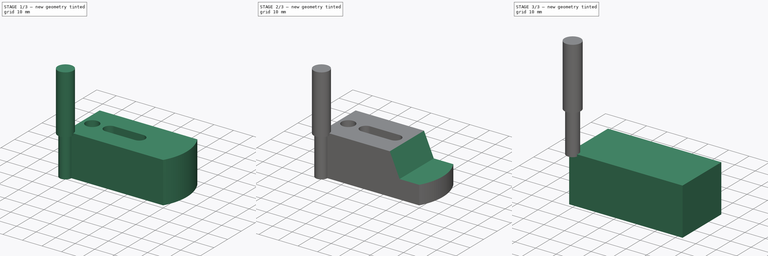
[diagram: build sequence overview — one tinted view per stage of 3, left to right]
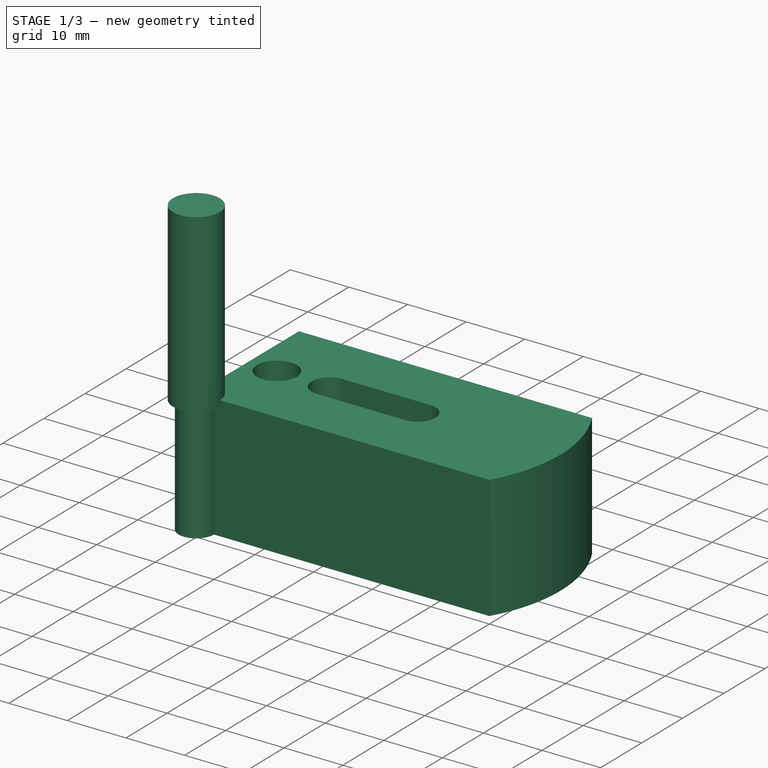
[diagram: stage 1 of 3 — iso view after this stage's code; geometry added in this stage tinted green]
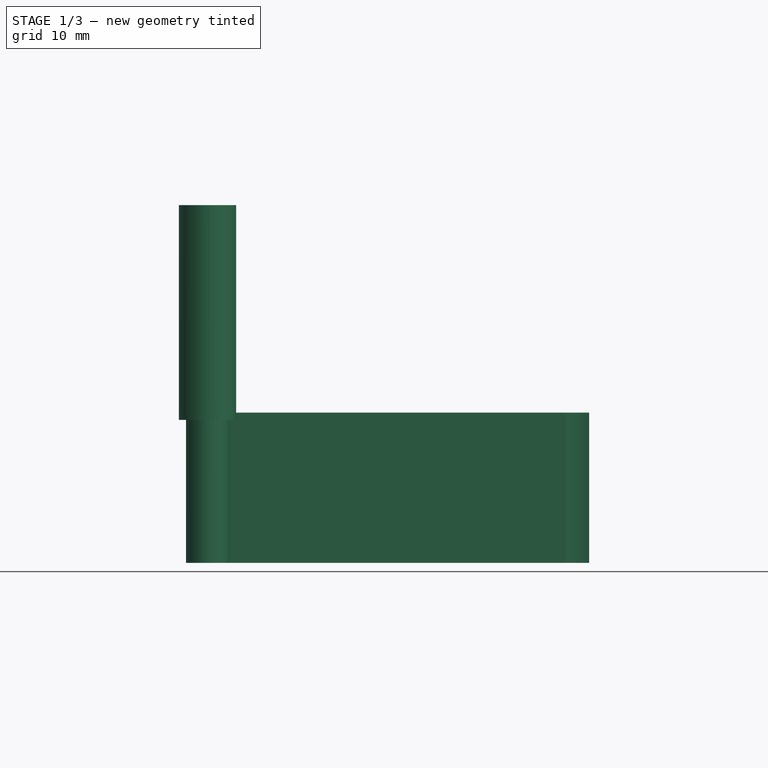
[diagram: stage 1 of 3 — front view after this stage's code; geometry added in this stage tinted green]
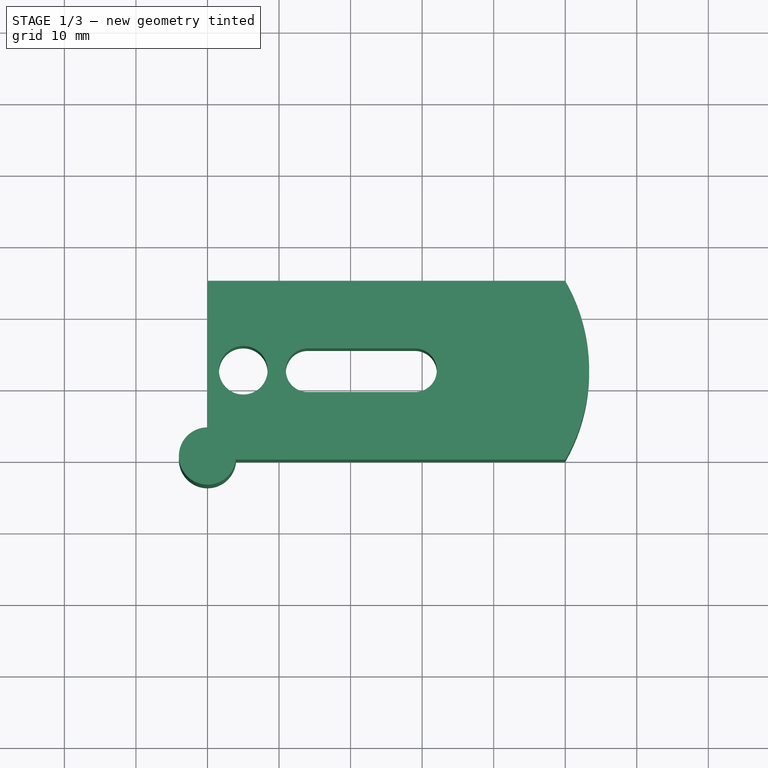
[diagram: stage 1 of 3 — top view after this stage's code; geometry added in this stage tinted green]
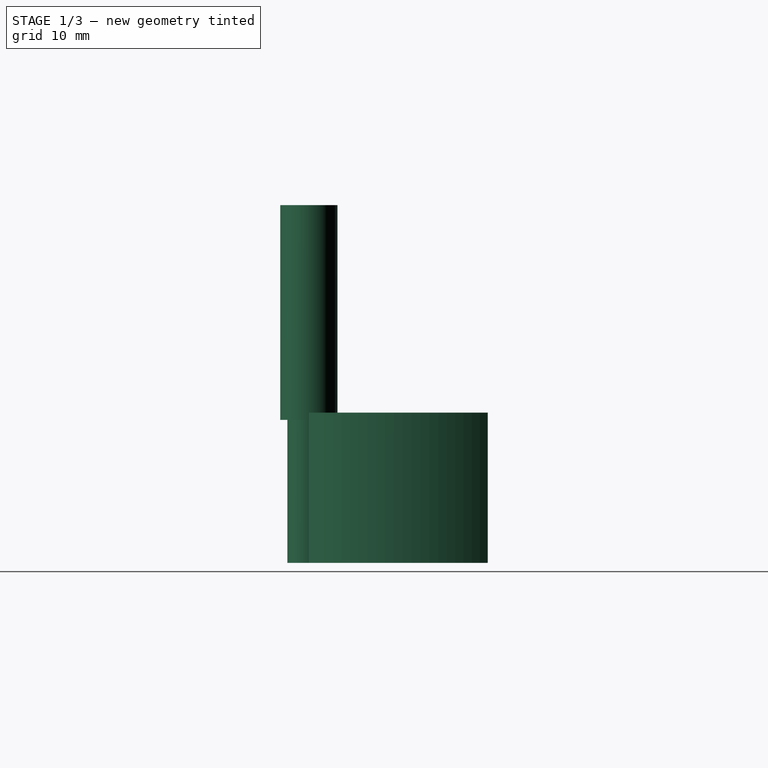
[diagram: stage 1 of 3 — right view after this stage's code; geometry added in this stage tinted green]
FCSTD DOCUMENT  (FreeCAD 0.20R29410 (Git))
Label: clamp_20
License: All rights reserved
LicenseURL: http://en.wikipedia.org/wiki/All_rights_reserved
objects: Path::FeaturePython×8, App::FeaturePython×3, Part::FeaturePython×3, App::DocumentObjectGroup×3, Sketcher::SketchObject×2, PartDesign::Pad×1, PartDesign::Pocket×1, PartDesign::Body×1
note: 15 computed .brp shape members not serialized (recipe doc carries the construction recipe); baked Part::Feature solids carry a one-line shape summary decoded from their .brp

FEATURE [Sketcher::SketchObject] Sketch
  FullyConstrained = true
  MapMode = 5
  Support = -> [XY_Plane]
  sketch-geometry (9):
    g0: LineSegment StartX=0 StartY=-7.1e-15 StartZ=0 EndX=50 EndY=-7.1e-15 EndZ=0
    g1: LineSegment StartX=50 StartY=25 StartZ=0 EndX=0 EndY=25 EndZ=0
    g2: LineSegment StartX=0 StartY=25 StartZ=0 EndX=0 EndY=-7.1e-15 EndZ=0
    g3: ArcOfCircle CenterX=29 CenterY=12.5 CenterZ=0 NormalX=0 NormalY=0 NormalZ=1 AngleXU=0 Radius=3.05 StartAngle=4.71239 EndAngle=7.85398
    g4: ArcOfCircle CenterX=14 CenterY=12.5 CenterZ=0 NormalX=0 NormalY=0 NormalZ=1 AngleXU=0 Radius=3.05 StartAngle=1.5708 EndAngle=4.71239
    g5: LineSegment StartX=29 StartY=15.55 StartZ=0 EndX=14 EndY=15.55 EndZ=0
    g6: LineSegment StartX=14 StartY=9.45 StartZ=0 EndX=29 EndY=9.45 EndZ=0
    g7: Circle CenterX=5 CenterY=12.5 CenterZ=0 NormalX=0 NormalY=0 NormalZ=1 AngleXU=0 Radius=3.4
    g8: ArcOfCircle CenterX=28.3494 CenterY=12.5 CenterZ=0 NormalX=0 NormalY=0 NormalZ=1 AngleXU=0 Radius=25 StartAngle=5.75959 EndAngle=6.80678
  constraints (25):
    c: Coincident(g1,g2)
    c: Coincident(g2,g0)
    c: Horizontal(g0)
    c: Horizontal(g1)
    c: Vertical(g2)
    c: Coincident(g0,g-1)
    c: DistanceX(g0,g0) = 50
    c: DistanceY(g0,g1) = 25
    c: Tangent(g3,g5) = -1.5708
    c: Tangent(g5,g4) = -1.5708
    c: Tangent(g4,g6) = -1.5708
    c: Tangent(g6,g3) = -1.5708
    c: Equal(g3,g4)
    c: DistanceX(g0,g4) = 14
    c: DistanceY(g0,g4) = 12.5
    c: Diameter(g7) = 6.8
    c: DistanceY(g0,g7) = 12.5
    c: DistanceX(g4,g3) = 15
    c: Horizontal(g4,g3)
    c: Diameter(g3) = 6.1
    c: DistanceX(g0,g7) = 5
    c: Coincident(g8,g1)
    c: Coincident(g8,g0)
    c: Equal(g0,g1)
    c: Diameter(g8) = 50
FEATURE [PartDesign::Pad] Pad
  Direction = (0,0,1)
  Length = 21
  Length2 = 10
  Profile = -> Sketch
  ReferenceAxis = -> Sketch [N_Axis]
  Type = 0
FEATURE [App::DocumentObjectGroup] Model
  Group = -> [Clone]
FEATURE [Part::FeaturePython] ToolBit001  label="6_enmill"  # Path/CAM toolbit (typed FeaturePython)
  BitPropertyNames = Chipload | CuttingEdgeHeight | Diameter | Flutes | Length | Material | ShankDiameter | SpindleDirection
  BitShape = <path>
  Chipload = 0
  CuttingEdgeHeight = 20
  Diameter = 6
  File = <userpath>/freecad_toolbit/Bit/6_enmill.fctb
  Flutes = 0
  Length = 50
  Material = 0
  ShankDiameter = 8
  ShapeName = endmill
  SpindleDirection = 0
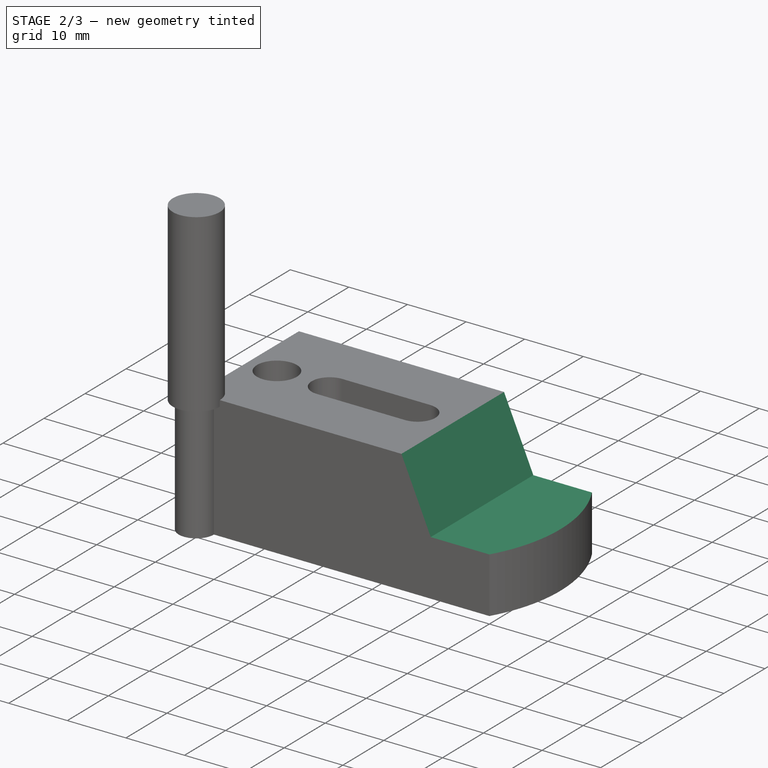
[diagram: stage 2 of 3 — iso view after this stage's code; geometry added in this stage tinted green]
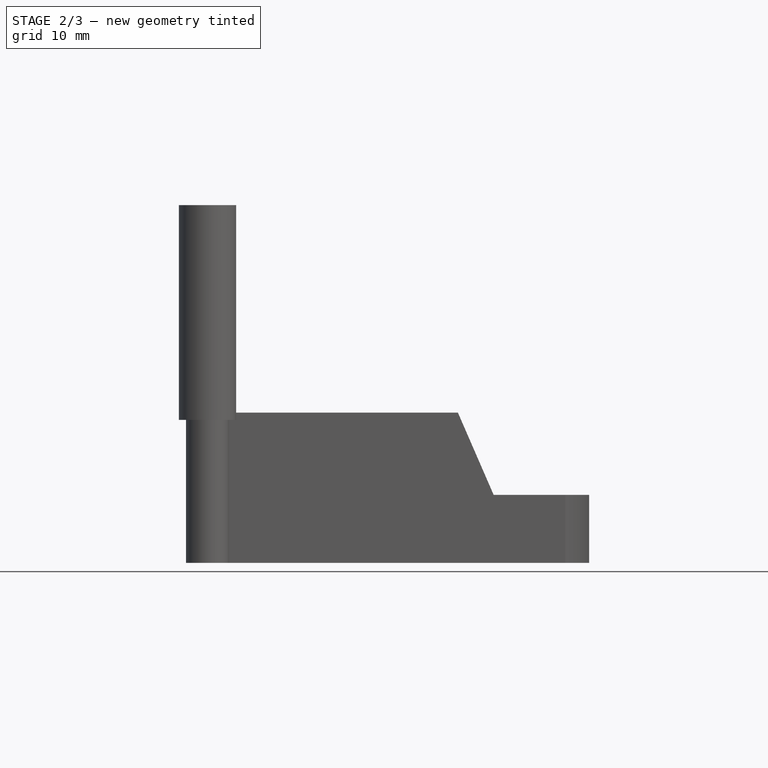
[diagram: stage 2 of 3 — front view after this stage's code; geometry added in this stage tinted green]
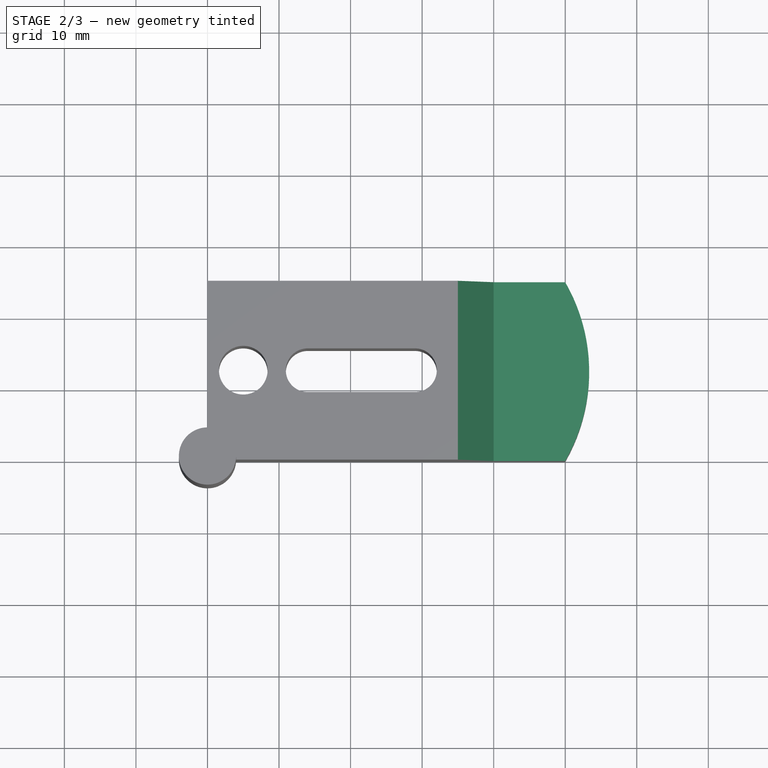
[diagram: stage 2 of 3 — top view after this stage's code; geometry added in this stage tinted green]
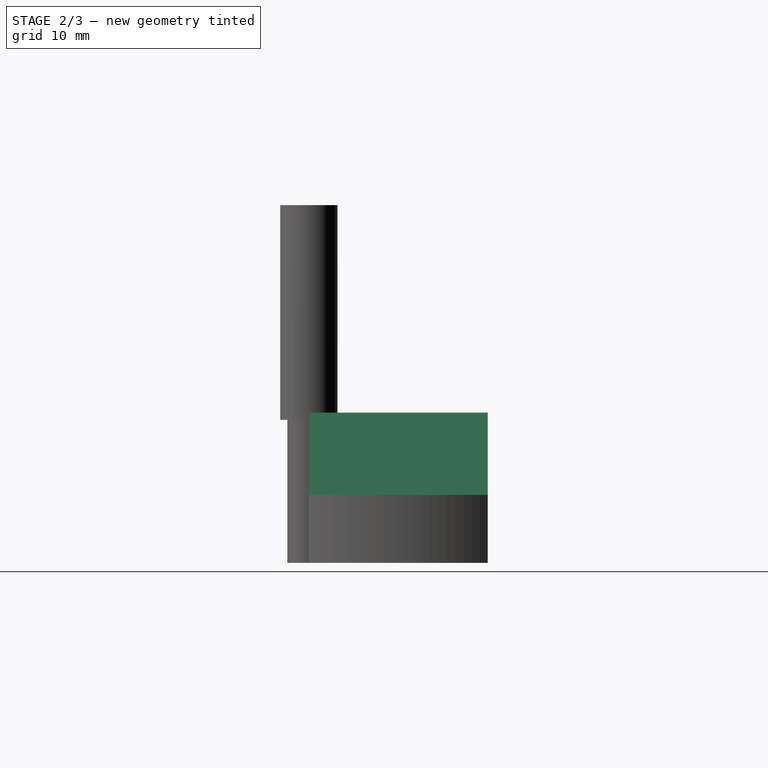
[diagram: stage 2 of 3 — right view after this stage's code; geometry added in this stage tinted green]
FEATURE [Sketcher::SketchObject] Sketch001
  ExternalGeometry = -> [Pad]
  FullyConstrained = true
  MapMode = 5
  Placement = pos=(0,-7.1e-15,0) rot=(1,0,0;1.5708rad)
  Support = -> [Pad]
  sketch-geometry (4):
    g0: LineSegment StartX=35 StartY=21 StartZ=0 EndX=55 EndY=21 EndZ=0
    g1: LineSegment StartX=55 StartY=21 StartZ=0 EndX=55 EndY=9.5 EndZ=0
    g2: LineSegment StartX=55 StartY=9.5 StartZ=0 EndX=40 EndY=9.5 EndZ=0
    g3: LineSegment StartX=40 StartY=9.5 StartZ=0 EndX=35 EndY=21 EndZ=0
  constraints (12):
    c: PointOnObject(g0,g-4)
    c: Horizontal(g0)
    c: DistanceX(g0,g-4) = 15
    c: DistanceX(g-4,g0) = 5
    c: Coincident(g1,g0)
    c: Vertical(g1)
    c: Coincident(g2,g1)
    c: Horizontal(g2)
    c: Coincident(g3,g2)
    c: Coincident(g3,g0)
    c: DistanceX(g2,g2) = 15
    c: DistanceY(g1,g1) = 11.5
FEATURE [PartDesign::Pocket] Pocket
  BaseFeature = -> Pad
  Direction = (0,1,-2e-16)
  Length = 5
  Length2 = 5
  Profile = -> Sketch001
  ReferenceAxis = -> Sketch001 [N_Axis]
  Type = 1
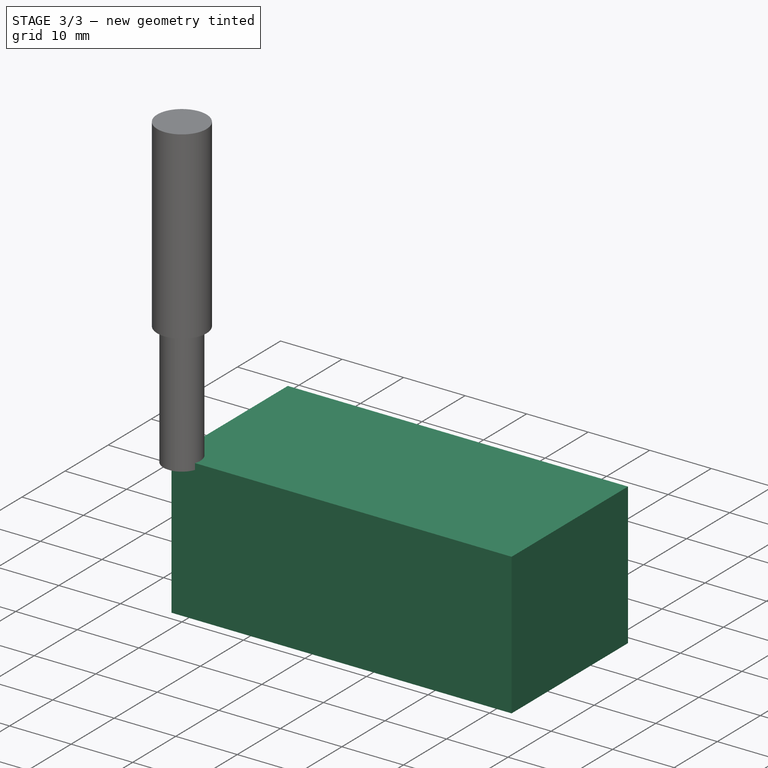
[diagram: stage 3 of 3 — iso view after this stage's code; geometry added in this stage tinted green]
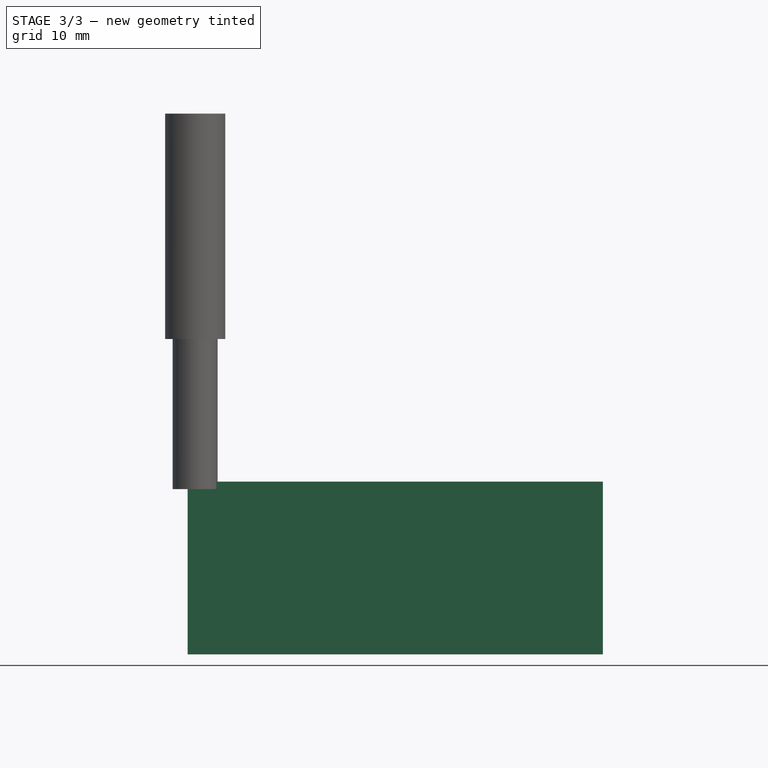
[diagram: stage 3 of 3 — front view after this stage's code; geometry added in this stage tinted green]
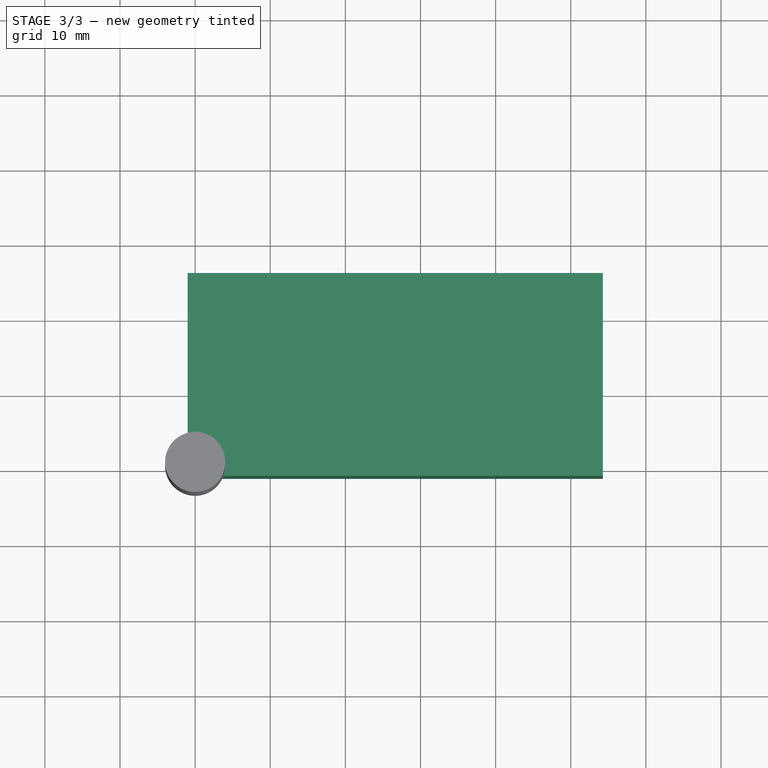
[diagram: stage 3 of 3 — top view after this stage's code; geometry added in this stage tinted green]
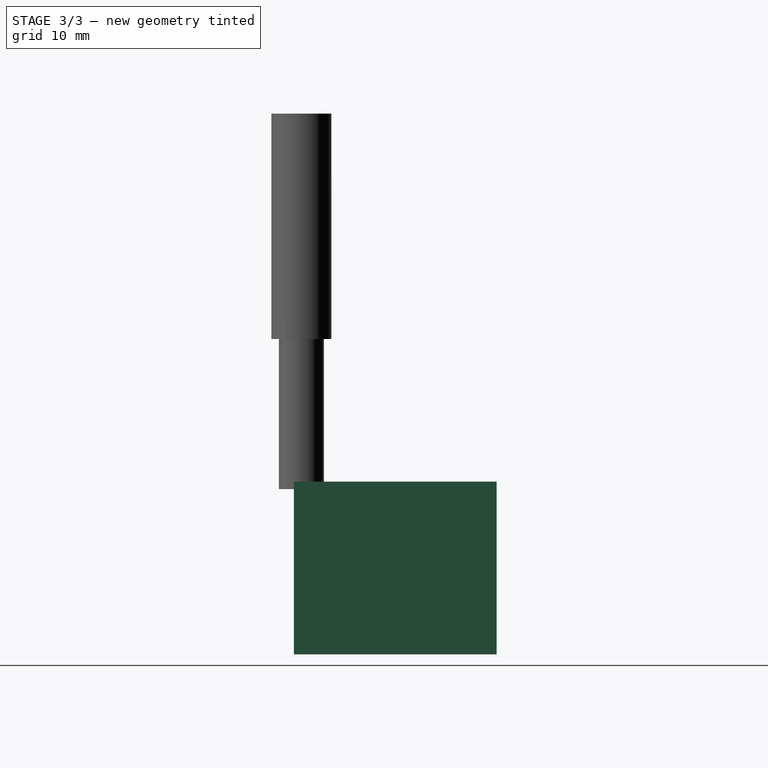
[diagram: stage 3 of 3 — right view after this stage's code; geometry added in this stage tinted green]
FEATURE [PartDesign::Body] Body
  Group = -> [Sketch,Pad,Sketch001,Pocket]
  Origin = -> Origin
  Tip = -> Pocket
FEATURE [App::FeaturePython] SetupSheet  # Path/CAM operation (typed FeaturePython)
  ClearanceHeightExpression = OpStockZMax+SetupSheet.ClearanceHeightOffset
  ClearanceHeightOffset = 5
  CoolantMode = 0
  CoolantModes = None | Flood | Mist
  FinalDepthExpression = OpFinalDepth
  HorizRapid = 0
  SafeHeightExpression = OpStockZMax+SetupSheet.SafeHeightOffset
  SafeHeightOffset = 3
  StartDepthExpression = OpStartDepth
  StepDownExpression = OpToolDiameter
  VertRapid = 0
FEATURE [Part::FeaturePython] Clone  label="Model-Body"  # Draft clone (typed FeaturePython)
  AttacherType = Attacher::AttachEngine3D
  Fuse = false
  Objects = -> [Body]
  PathResource = Model
  Placement = pos=(0,7.1e-15,-21) rot=(0,0,1;0rad)
  Scale = (1,1,1)
FEATURE [Path::FeaturePython] __enmill  label="6_enmill001"  # Path/CAM operation (typed FeaturePython)
  HorizFeed = 4.16667
  HorizRapid = 0
  SpindleDir = 0
  SpindleSpeed = 5000
  Tool = -> ToolBit001
  ToolNumber = 2
  VertFeed = 0.333333
  VertRapid = 0
  expr: HorizRapid = SetupSheet.HorizRapid
  expr: VertRapid = SetupSheet.VertRapid
FEATURE [App::DocumentObjectGroup] Tools
  Group = -> [__enmill]
FEATURE [Path::FeaturePython] Pocket_Shape  # Path/CAM operation (typed FeaturePython)
  Active = true
  AreaParams:
    Tolerance = 1e-07
    FitArcs = True
    Simplify = False
    CleanDistance = 0.0
    Accuracy = 0.01
    Unit = 1.0
    MinArcPoints = 4
    MaxArcPoints = 100
    ClipperScale = 10000000.0
    Fill = 0
    Coplanar = 0
    Reorient = True
    Outline = False
    Explode = False
    OpenMode = 0
    Deflection = 0.01
    SubjectFill = 0
    ClipFill = 0
    Offset = 0.0
    ExtraPass = 0
    Stepover = 0.0
    LastStepover = 0.0
    JoinType = 0
    EndType = 0
    MiterLimit = 2.0
    RoundPrecision = 0.0
    PocketMode = 2
    ToolRadius = 3.0
    PocketExtraOffset = 0.0
    PocketStepover = 6.0
    PocketLastStepover = 0.0
    FromCenter = True
    Angle = 45.0
    AngleShift = 0.0
    Shift = 0.0
    Thicken = False
    SectionCount = -1
    Stepdown = 1.0
    SectionOffset = 0.0
    SectionTolerance = 1e-06
    SectionMode = 2
    Project = False
  Base = -> [Clone]
  ClearanceHeight = 6
  CoolantMode = 0
  CutMode = 1
  CycleTime = 00:08:22
  ExtensionCorners = true
  ExtensionLengthDefault = 3
  ExtraOffset = 0
  FinalDepth = -21
  FinishDepth = 0
  KeepToolDown = false
  MinTravel = false
  OffsetPattern = 1
  OpFinalDepth = -21
  OpStartDepth = 1
  OpStockZMax = 1
  OpStockZMin = -22
  OpToolDiameter = 6
  PathParams = {'orientation': 0, 'feedrate': 4.166666666666667, 'feedrate_v': 0.3333333333333333, 'verbose': True, 'resume_height': 4.0, 'retraction': 6.0, 'return_end': True, 'preamble': False, 'start': Vector (0.0, 0.0, 0.0)}
  PocketLastStepOver = 0
  SafeHeight = 4
  SplitArcs = false
  StartAt = 0
  StartDepth = 1
  StartPoint = (0,0,0)
  StepDown = 0.5
  StepOver = 100
  ToolController = -> __enmill
  UseOutline = false
  UseStartPoint = true
  ZigZagAngle = 45
  expr: ClearanceHeight = OpStockZMax + SetupSheet.ClearanceHeightOffset
  expr: ExtensionLengthDefault = OpToolDiameter / 2
  expr: FinalDepth = OpFinalDepth
  expr: SafeHeight = OpStockZMax + SetupSheet.SafeHeightOffset
  expr: StartDepth = 1
  expr: StepDown = 0.5
FEATURE [Part::FeaturePython] Stock  # WARN: FeaturePython — macro-defined, semantics opaque (R4)
  Base = -> Model
  ExtXneg = 1
  ExtXpos = 1
  ExtYneg = 1
  ExtYpos = 1
  ExtZneg = 1
  ExtZpos = 1
  Placement = pos=(0,0,-21) rot=(0,0,1;0rad)
  StockType = FromBase
FEATURE [Path::FeaturePython] Pocket3D  # Path/CAM operation (typed FeaturePython)
  Active = true
  AdaptivePocketFinish = false
  AdaptivePocketStart = false
  AreaParams:
    Tolerance = 1e-07
    FitArcs = True
    Simplify = False
    CleanDistance = 0.0
    Accuracy = 0.01
    Unit = 1.0
    MinArcPoints = 4
    MaxArcPoints = 100
    ClipperScale = 10000000.0
    Fill = 0
    Coplanar = 0
    Reorient = True
    Outline = False
    Explode = False
    OpenMode = 0
    Deflection = 0.01
    SubjectFill = 0
    ClipFill = 0
    Offset = 0.0
    ExtraPass = 0
    Stepover = 0.0
    LastStepover = 0.0
    JoinType = 0
    EndType = 0
    MiterLimit = 2.0
    RoundPrecision = 0.0
    PocketMode = 4
    ToolRadius = 3.0
    PocketExtraOffset = 0.0
    PocketStepover = 4.800000000000001
    PocketLastStepover = 0.0
    FromCenter = True
    Angle = 45.0
    AngleShift = 0.0
    Shift = 0.0
    Thicken = False
    SectionCount = -1
    Stepdown = 1.0
    SectionOffset = 0.0
    SectionTolerance = 1e-06
    SectionMode = 2
    Project = False
  Base = -> [Clone]
  ClearanceHeight = 6
  CoolantMode = 0
  CutMode = 1
  CycleTime = 00:31:02
  ExtraOffset = 0
  FinalDepth = -21
  FinishDepth = 0
  HandleMultipleFeatures = 0
  KeepToolDown = false
  MinTravel = false
  OffsetPattern = 2
  OpFinalDepth = -21
  OpStartDepth = 1
  OpStockZMax = 1
  OpStockZMin = -22
  OpToolDiameter = 6
  PathParams = {'orientation': 0, 'feedrate': 4.166666666666667, 'feedrate_v': 0.3333333333333333, 'verbose': True, 'resume_height': 4.0, 'retraction': 6.0, 'return_end': True, 'preamble': False}
  PocketLastStepOver = 0
  ProcessStockArea = false
  SafeHeight = 4
  SplitArcs = false
  StartAt = 0
  StartDepth = 1
  StartPoint = (0,0,0)
  StepDown = 0.5
  StepOver = 80
  ToolController = -> __enmill
  UseStartPoint = false
  ZigZagAngle = 45
  expr: ClearanceHeight = OpStockZMax + SetupSheet.ClearanceHeightOffset
  expr: FinalDepth = OpFinalDepth
  expr: OpFinalDepth = -21mm
  expr: SafeHeight = OpStockZMax + SetupSheet.SafeHeightOffset
  expr: StartDepth = OpStartDepth
  expr: StepDown = 0.5
FEATURE [Path::FeaturePython] Profile  # Path/CAM operation (typed FeaturePython)
  Active = true
  AreaParams:
    Tolerance = 1e-07
    FitArcs = True
    Simplify = False
    CleanDistance = 0.0
    Accuracy = 0.01
    Unit = 1.0
    MinArcPoints = 4
    MaxArcPoints = 100
    ClipperScale = 10000000.0
    Fill = 0
    Coplanar = 0
    Reorient = True
    Outline = False
    Explode = False
    OpenMode = 0
    Deflection = 0.01
    SubjectFill = 0
    ClipFill = 0
    Offset = 3.0
    ExtraPass = 0
    Stepover = 0.0
    LastStepover = 0.0
    JoinType = 0
    EndType = 0
    MiterLimit = 2.0
    RoundPrecision = 0.0
    PocketMode = 0
    ToolRadius = 1.0
    PocketExtraOffset = 0.0
    PocketStepover = 0.0
    PocketLastStepover = 0.0
    FromCenter = False
    Angle = 45.0
    AngleShift = 0.0
    Shift = 0.0
    Thicken = False
    SectionCount = -1
    Stepdown = 1.0
    SectionOffset = 0.0
    SectionTolerance = 1e-06
    SectionMode = 2
    Project = False
  Base = -> [Clone]
  ClearanceHeight = 6
  CoolantMode = 0
  CycleTime = 00:32:20
  Direction = 0
  FinalDepth = -21
  HandleMultipleFeatures = 0
  JoinType = 0
  MiterLimit = 0.1
  OffsetExtra = 0
  OpFinalDepth = -21
  OpStartDepth = 1
  OpStockZMax = 1
  OpStockZMin = -22
  OpToolDiameter = 6
  PathParams = {'orientation': 1, 'feedrate': 4.166666666666667, 'feedrate_v': 0.3333333333333333, 'verbose': True, 'resume_height': 4.0, 'retraction': 6.0, 'return_end': True, 'preamble': False}
  SafeHeight = 4
  Side = 0
  SplitArcs = false
  StartDepth = 1
  StartPoint = (0,0,0)
  StepDown = 0.5
  ToolController = -> __enmill
  UseComp = true
  UseStartPoint = false
  processCircles = false
  processHoles = false
  processPerimeter = true
  expr: ClearanceHeight = OpStockZMax + SetupSheet.ClearanceHeightOffset
  expr: FinalDepth = OpFinalDepth
  expr: SafeHeight = OpStockZMax + SetupSheet.SafeHeightOffset
  expr: StartDepth = OpStartDepth
  expr: StepDown = 0.5
FEATURE [Path::FeaturePython] DressupTag  # Path/CAM operation (typed FeaturePython)
  Angle = 80
  Base = -> Profile
  Height = 6
  Positions = (4) [(37.5,-3,0),(12.5,-3,0),(12.5,28,0),(37.5,28,0)]
  Radius = 0
  SegmentationFactor = 50
  Width = 6
FEATURE [Path::FeaturePython] Pocket_Shape001  # Path/CAM operation (typed FeaturePython)
  Active = true
  AreaParams:
    Tolerance = 1e-07
    FitArcs = True
    Simplify = False
    CleanDistance = 0.0
    Accuracy = 0.01
    Unit = 1.0
    MinArcPoints = 4
    MaxArcPoints = 100
    ClipperScale = 10000000.0
    Fill = 0
    Coplanar = 0
    Reorient = True
    Outline = False
    Explode = False
    OpenMode = 0
    Deflection = 0.01
    SubjectFill = 0
    ClipFill = 0
    Offset = 0.0
    ExtraPass = 0
    Stepover = 0.0
    LastStepover = 0.0
    JoinType = 0
    EndType = 0
    MiterLimit = 2.0
    RoundPrecision = 0.0
    PocketMode = 4
    ToolRadius = 3.0
    PocketExtraOffset = 0.0
    PocketStepover = 6.0
    PocketLastStepover = 0.0
    FromCenter = True
    Angle = 45.0
    AngleShift = 0.0
    Shift = 0.0
    Thicken = False
    SectionCount = -1
    Stepdown = 1.0
    SectionOffset = 0.0
    SectionTolerance = 1e-06
    SectionMode = 2
    Project = False
  Base = -> [Clone]
  ClearanceHeight = 6
  CoolantMode = 0
  CutMode = 1
  CycleTime = 00:03:07
  ExtensionCorners = true
  ExtensionLengthDefault = 3
  ExtraOffset = 0
  FinalDepth = -17
  FinishDepth = 0
  KeepToolDown = false
  MinTravel = false
  OffsetPattern = 2
  OpFinalDepth = -21
  OpStartDepth = 1
  OpStockZMax = 1
  OpStockZMin = -22
  OpToolDiameter = 6
  PathParams = {'orientation': 0, 'feedrate': 4.166666666666667, 'feedrate_v': 0.3333333333333333, 'verbose': True, 'resume_height': 4.0, 'retraction': 6.0, 'return_end': True, 'preamble': False, 'start': Vector (0.0, 0.0, 0.0)}
  PocketLastStepOver = 0
  SafeHeight = 4
  SplitArcs = false
  StartAt = 0
  StartDepth = 1
  StartPoint = (0,0,0)
  StepDown = 0.5
  StepOver = 100
  ToolController = -> __enmill
  UseOutline = false
  UseStartPoint = true
  ZigZagAngle = 45
  expr: ClearanceHeight = OpStockZMax + SetupSheet.ClearanceHeightOffset
  expr: ExtensionLengthDefault = OpToolDiameter / 2
  expr: FinalDepth = -17
  expr: SafeHeight = OpStockZMax + SetupSheet.SafeHeightOffset
  expr: StartDepth = OpStartDepth
  expr: StepDown = 0.5
FEATURE [Path::FeaturePython] Pocket_Shape002  # Path/CAM operation (typed FeaturePython)
  Active = true
  AreaParams:
    Tolerance = 1e-07
    FitArcs = True
    Simplify = False
    CleanDistance = 0.0
    Accuracy = 0.01
    Unit = 1.0
    MinArcPoints = 4
    MaxArcPoints = 100
    ClipperScale = 10000000.0
    Fill = 0
    Coplanar = 0
    Reorient = True
    Outline = False
    Explode = False
    OpenMode = 0
    Deflection = 0.01
    SubjectFill = 0
    ClipFill = 0
    Offset = 0.0
    ExtraPass = 0
    Stepover = 0.0
    LastStepover = 0.0
    JoinType = 0
    EndType = 0
    MiterLimit = 2.0
    RoundPrecision = 0.0
    PocketMode = 4
    ToolRadius = 3.0
    PocketExtraOffset = 0.0
    PocketStepover = 6.0
    PocketLastStepover = 0.0
    FromCenter = True
    Angle = 45.0
    AngleShift = 0.0
    Shift = 0.0
    Thicken = False
    SectionCount = -1
    Stepdown = 1.0
    SectionOffset = 0.0
    SectionTolerance = 1e-06
    SectionMode = 2
    Project = False
  Base = -> [Clone]
  ClearanceHeight = 6
  CoolantMode = 0
  CutMode = 0
  CycleTime = 00:27:56
  ExtensionCorners = true
  ExtensionLengthDefault = 3
  ExtraOffset = 0
  FinalDepth = -21
  FinishDepth = 0
  KeepToolDown = false
  MinTravel = false
  OffsetPattern = 2
  OpFinalDepth = -21
  OpStartDepth = 1
  OpStockZMax = 1
  OpStockZMin = -22
  OpToolDiameter = 6
  PathParams = {'orientation': 1, 'feedrate': 4.166666666666667, 'feedrate_v': 0.3333333333333333, 'verbose': True, 'resume_height': 4.0, 'retraction': 6.0, 'return_end': True, 'preamble': False}
  PocketLastStepOver = 0
  SafeHeight = 4
  SplitArcs = false
  StartAt = 0
  StartDepth = -16
  StartPoint = (0,0,0)
  StepDown = 0.5
  StepOver = 100
  ToolController = -> __enmill
  UseOutline = false
  UseStartPoint = false
  ZigZagAngle = 45
  expr: ClearanceHeight = OpStockZMax + SetupSheet.ClearanceHeightOffset
  expr: ExtensionLengthDefault = OpToolDiameter / 2
  expr: FinalDepth = OpFinalDepth
  expr: SafeHeight = OpStockZMax + SetupSheet.SafeHeightOffset
  expr: StartDepth = -16
  expr: StepDown = 0.5
FEATURE [App::DocumentObjectGroup] Operations
  Group = -> [Pocket_Shape001,Pocket_Shape002,Pocket_Shape,Pocket3D,DressupTag]
FEATURE [Path::FeaturePython] Job  # Path/CAM operation (typed FeaturePython)
  CycleTime = 01:42:47
  Fixtures = G54
  GeometryTolerance = 0.01
  JobType = 0
  LastPostProcessDate = 2022-12-11 09:25:10.540875
  LastPostProcessOutput = <userpath>/projects/freecad/clamp_20.nc
  Model = -> Model
  Operations = -> Operations
  OrderOutputBy = 0
  PostProcessor = 8
  SetupSheet = -> SetupSheet
  SplitOutput = false
  Stock = -> Stock
  Tools = -> Tools
FEATURE [App::FeaturePython] PropertyBag  # WARN: FeaturePython — macro-defined, semantics opaque (R4)
FEATURE [App::FeaturePython] PropertyBag001  # WARN: FeaturePython — macro-defined, semantics opaque (R4)
note: 1 file-system path scrubbed to <path> (originals preserved in the JSON sidecar)
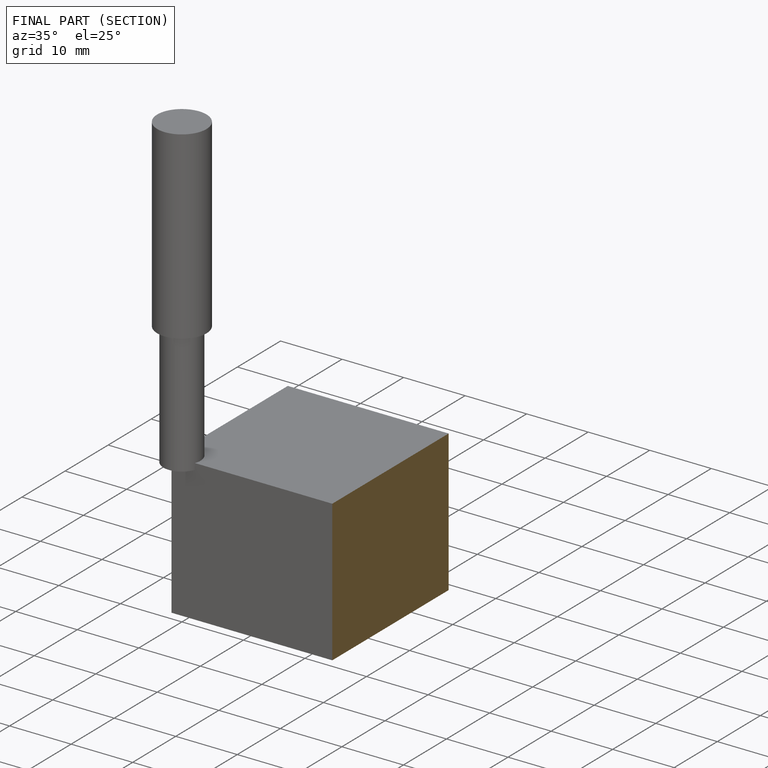
[diagram: finished part — half-section view (interior)]
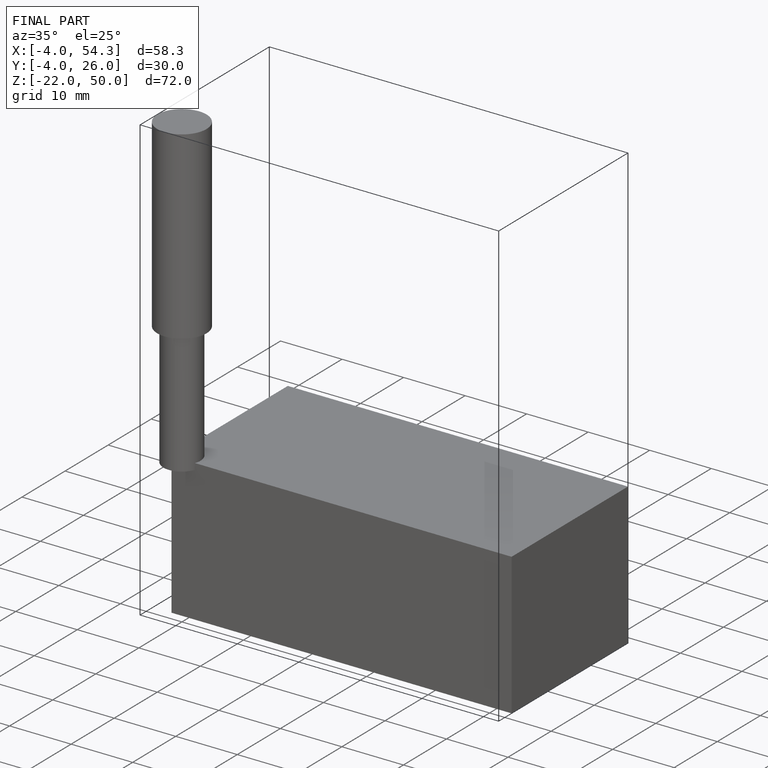
[diagram: finished part — iso view with bounding-box wireframe]
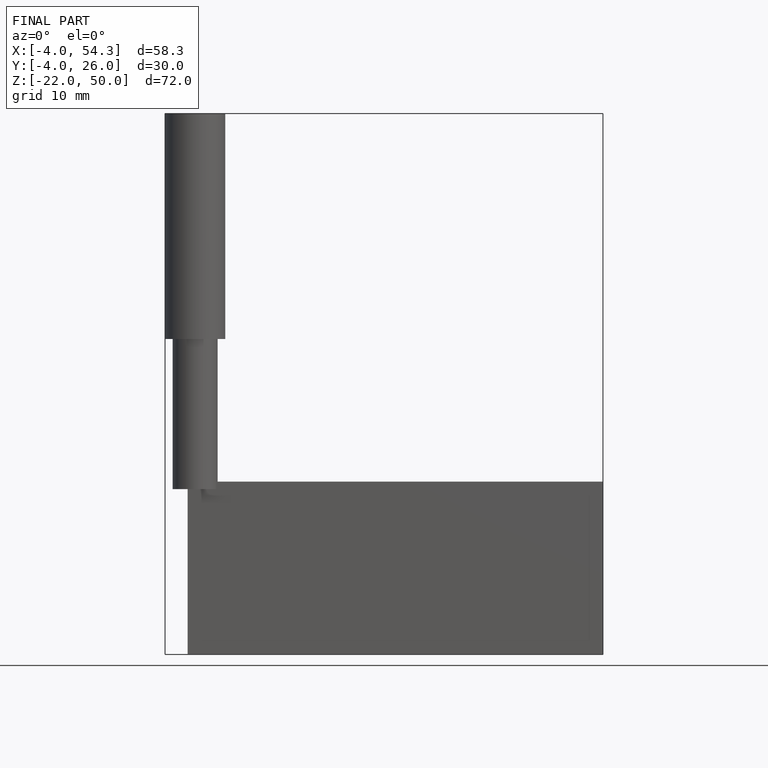
[diagram: finished part — front view with bounding-box wireframe]
